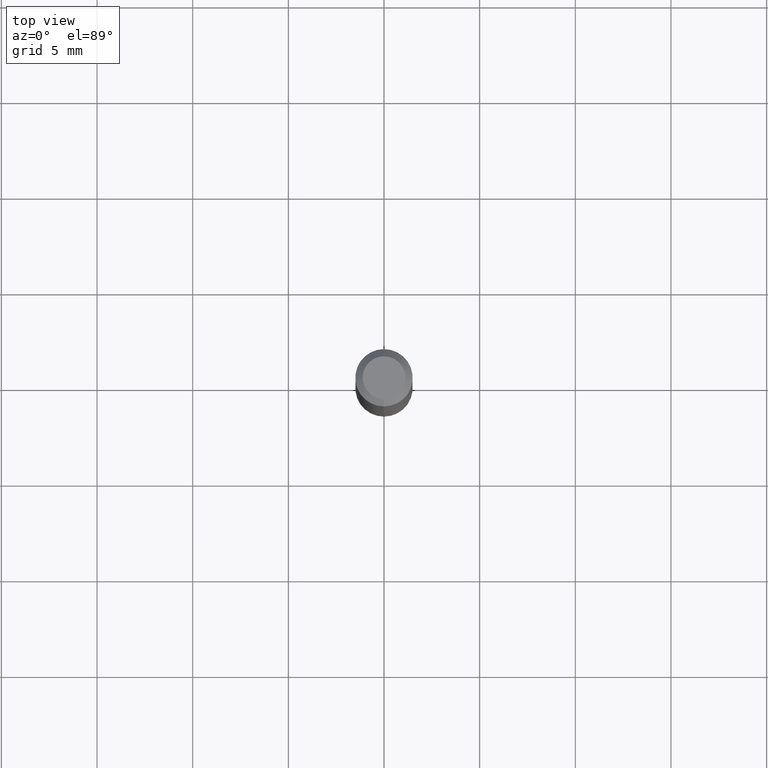
[diagram: clean part render]
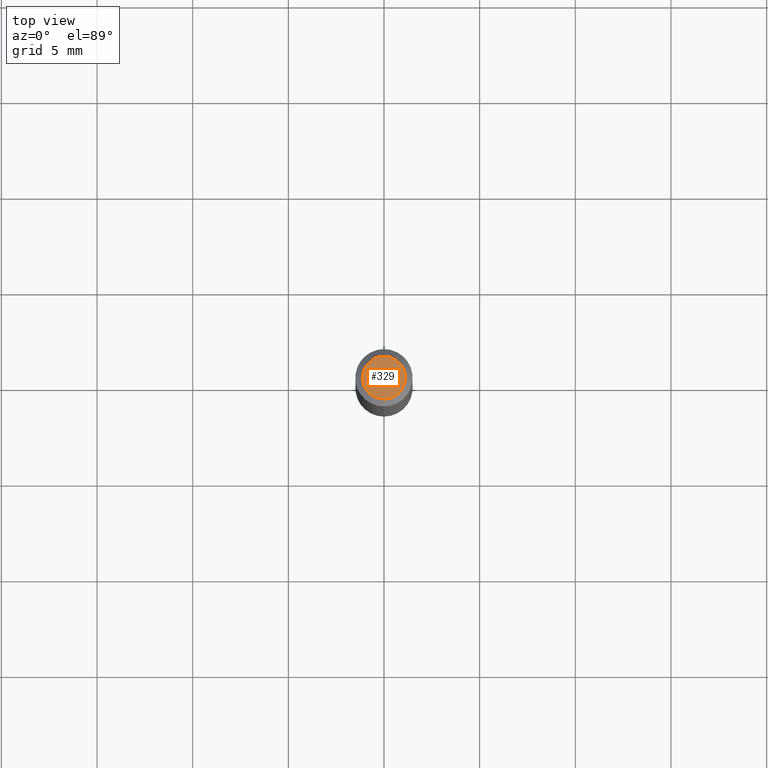
[diagram: same view with one face highlighted and labeled with its STEP entity id]
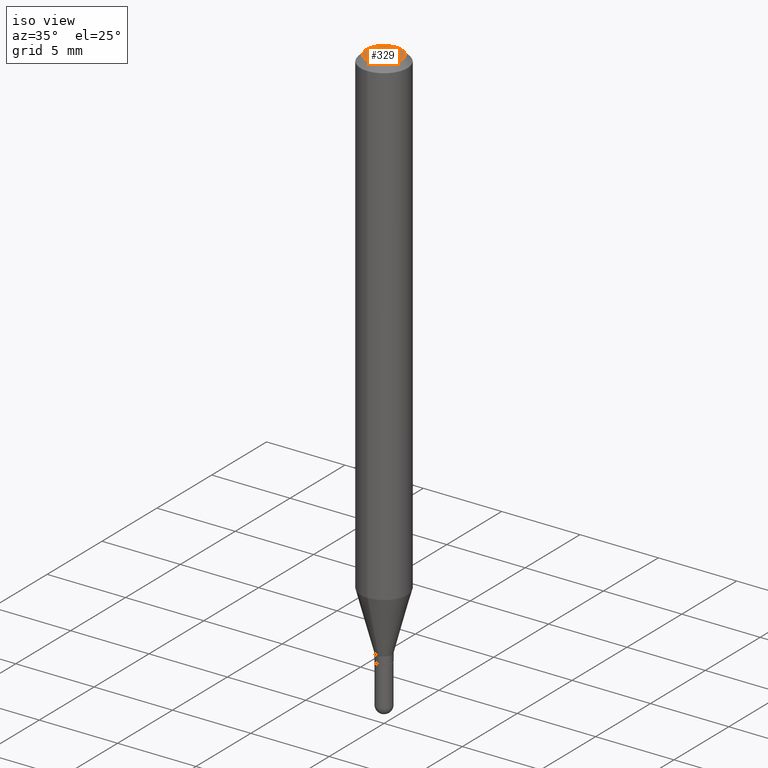
[diagram: same view with one face highlighted and labeled with its STEP entity id]
A machine part, top view. The second image highlights one B-rep face of the part: STEP entity #329.
A second angle (iso view) of the same face is appended — the face is thin or edge-on in the first view.
In plain terms, the highlighted planar face has unit normal (0, -0, -1).
Its self-contained STEP definition (entity closure, byte-faithful):
#47 = CARTESIAN_POINT ( 'NONE',  ( 3.075995059520799729E-16, 0.04404999999999999888, -3.253430260801311543E-16 ) ) ;
#51 = VERTEX_POINT ( 'NONE', #81 ) ;
#81 = CARTESIAN_POINT ( 'NONE',  ( -3.536586717851222218E-16, -0.04404999999999999888, -1.894737676127414243E-16 ) ) ;
#93 = DIRECTION ( 'NONE',  ( -2.446456800980005402E-29, 3.490066474063722068E-15, 1.000000000000000000 ) ) ;
#98 = CARTESIAN_POINT ( 'NONE',  ( 8.396513641257656738E-45, -1.197829887968316227E-30, -3.432111957952484022E-16 ) ) ;
#142 = AXIS2_PLACEMENT_3D ( 'NONE', #47, #204, #365 ) ;
#160 = AXIS2_PLACEMENT_3D ( 'NONE', #98, #415, #375 ) ;
#200 = CARTESIAN_POINT ( 'NONE',  ( 8.396513641257656738E-45, -1.197829887968316227E-30, -3.432111957952484022E-16 ) ) ;
#204 = DIRECTION ( 'NONE',  ( 2.446456800980005121E-29, -3.490066474063722068E-15, -1.000000000000000000 ) ) ;
#227 = VERTEX_POINT ( 'NONE', #452 ) ;
#239 = FACE_OUTER_BOUND ( 'NONE', #360, .T. ) ;
#256 = AXIS2_PLACEMENT_3D ( 'NONE', #200, #93, #409 ) ;
#257 = EDGE_CURVE ( 'NONE', #51, #227, #279, .T. ) ;
#262 = ORIENTED_EDGE ( 'NONE', *, *, #257, .T. ) ;
#279 = CIRCLE ( 'NONE', #256, 0.04404999999999999888 ) ;
#328 = PLANE ( 'NONE',  #142 ) ;
#329 = ADVANCED_FACE ( 'NONE', ( #239 ), #328, .F. ) ;
#341 = EDGE_CURVE ( 'NONE', #227, #51, #354, .T. ) ;
#354 = CIRCLE ( 'NONE', #160, 0.04404999999999999888 ) ;
#360 = EDGE_LOOP ( 'NONE', ( #449, #262 ) ) ;
#365 = DIRECTION ( 'NONE',  ( 6.982962677686265922E-15, 1.000000000000000000, -3.490066474063722068E-15 ) ) ;
#375 = DIRECTION ( 'NONE',  ( -6.982962677686265133E-15, -1.000000000000000000, 3.490066474063722068E-15 ) ) ;
#409 = DIRECTION ( 'NONE',  ( -6.982962677686265133E-15, -1.000000000000000000, 3.490066474063722068E-15 ) ) ;
#415 = DIRECTION ( 'NONE',  ( -2.446456800980005402E-29, 3.490066474063722068E-15, 1.000000000000000000 ) ) ;
#449 = ORIENTED_EDGE ( 'NONE', *, *, #341, .T. ) ;
#452 = CARTESIAN_POINT ( 'NONE',  ( 3.599717260347271507E-16, 0.04404999999999999888, -4.969486239777553554E-16 ) ) ;